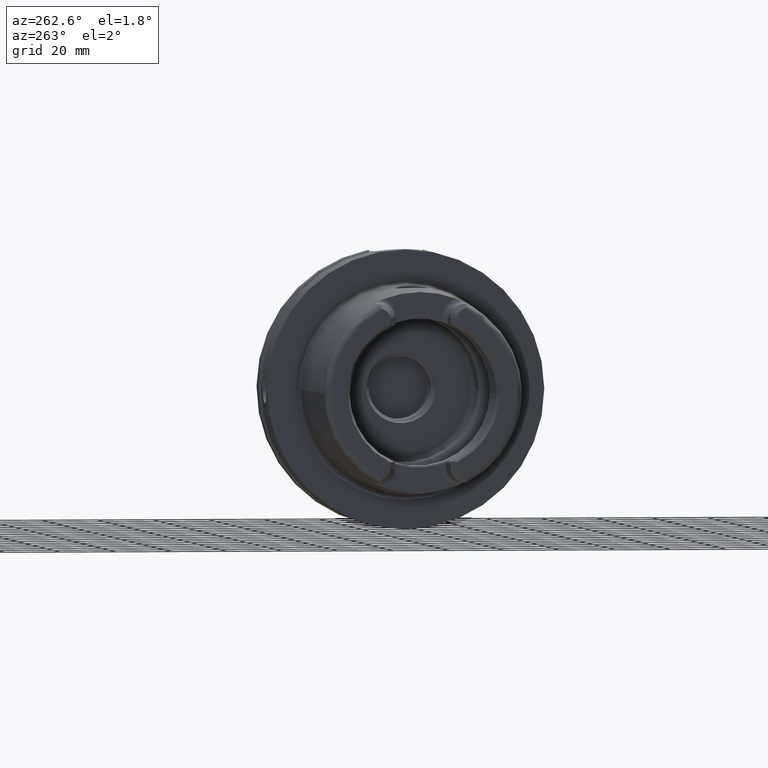
[diagram: clean part render]
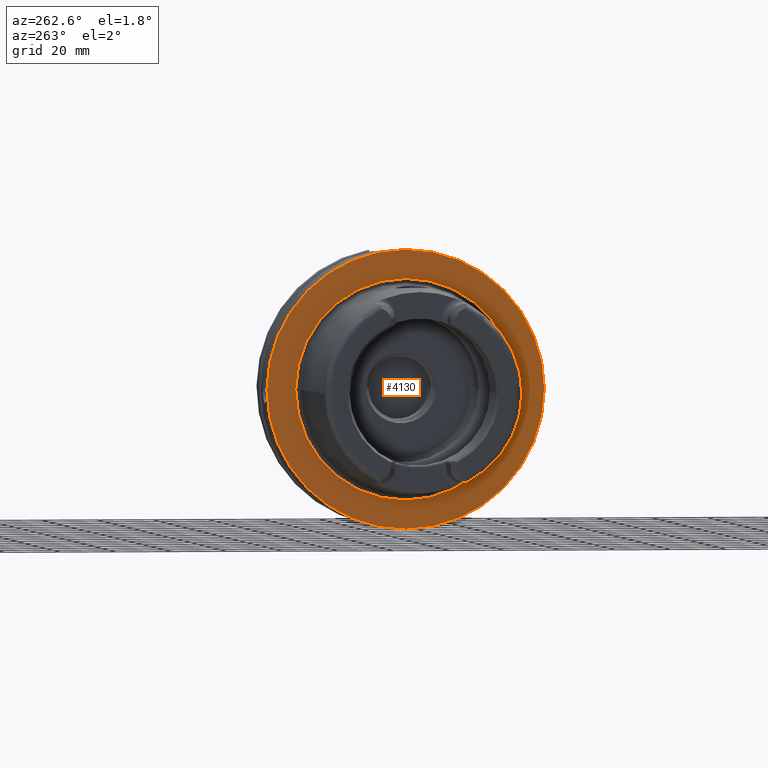
[diagram: same view with one face highlighted and labeled with its STEP entity id]
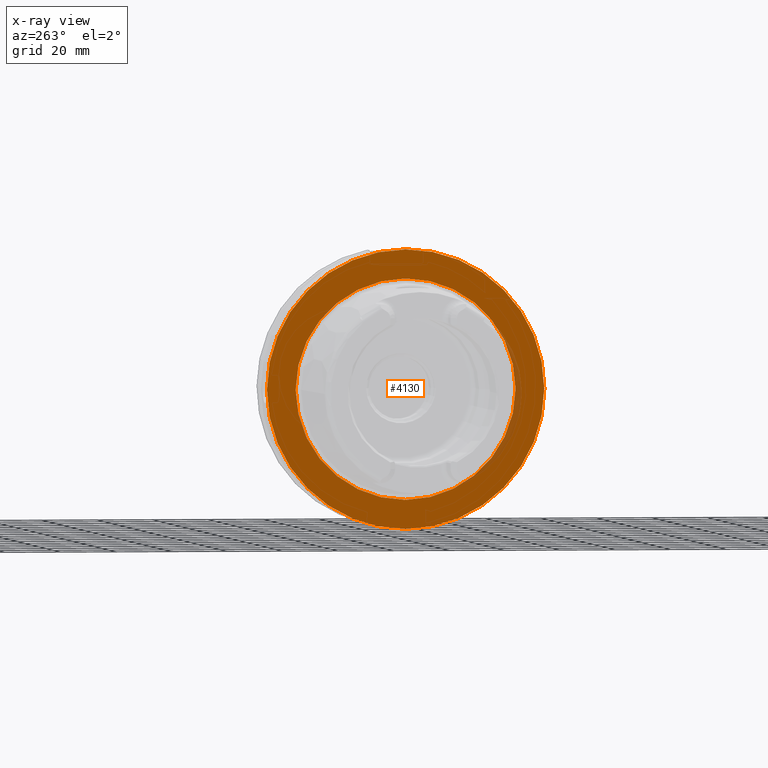
[diagram: x-ray of the same camera — body ghosted, the highlighted face saturated]
A machine part, auxiliary view. The second image highlights one B-rep face of the part: STEP entity #4130.
The next image is the same camera in x-ray: the body ghosted, the highlighted face saturated — about 4% of this face is hidden behind the body in this view.
In plain terms, the highlighted planar face has unit normal (1, 0, 0).
Its self-contained STEP definition (entity closure, byte-faithful):
#905=CARTESIAN_POINT('',(2.842170943040E-14,0.E0,0.E0));
#906=DIRECTION('',(1.E0,0.E0,0.E0));
#907=DIRECTION('',(0.E0,1.E0,0.E0));
#908=AXIS2_PLACEMENT_3D('',#905,#906,#907);
#910=CARTESIAN_POINT('',(2.842170943040E-14,0.E0,0.E0));
#911=DIRECTION('',(-1.E0,0.E0,0.E0));
#912=DIRECTION('',(0.E0,1.E0,0.E0));
#913=AXIS2_PLACEMENT_3D('',#910,#911,#912);
#915=CARTESIAN_POINT('',(0.E0,0.E0,0.E0));
#916=DIRECTION('',(-1.E0,0.E0,0.E0));
#917=DIRECTION('',(0.E0,-1.E0,0.E0));
#918=AXIS2_PLACEMENT_3D('',#915,#916,#917);
#920=CARTESIAN_POINT('',(0.E0,0.E0,0.E0));
#921=DIRECTION('',(-1.E0,0.E0,0.E0));
#922=DIRECTION('',(0.E0,1.E0,0.E0));
#923=AXIS2_PLACEMENT_3D('',#920,#921,#922);
#2693=CARTESIAN_POINT('',(2.842170943040E-14,5.E1,0.E0));
#2694=CARTESIAN_POINT('',(2.842170943040E-14,-5.E1,0.E0));
#2695=VERTEX_POINT('',#2693);
#2696=VERTEX_POINT('',#2694);
#2721=CARTESIAN_POINT('',(0.E0,-3.963225E1,0.E0));
#2722=VERTEX_POINT('',#2721);
#2723=CARTESIAN_POINT('',(0.E0,3.963225E1,0.E0));
#2724=VERTEX_POINT('',#2723);
#4115=CARTESIAN_POINT('',(0.E0,0.E0,0.E0));
#4116=DIRECTION('',(1.E0,0.E0,0.E0));
#4117=DIRECTION('',(0.E0,-1.E0,0.E0));
#4118=AXIS2_PLACEMENT_3D('',#4115,#4116,#4117);
#4119=PLANE('',#4118);
#4121=ORIENTED_EDGE('',*,*,#4120,.T.);
#4123=ORIENTED_EDGE('',*,*,#4122,.F.);
#4124=EDGE_LOOP('',(#4121,#4123));
#4125=FACE_OUTER_BOUND('',#4124,.F.);
#4126=ORIENTED_EDGE('',*,*,#4110,.T.);
#4127=ORIENTED_EDGE('',*,*,#4094,.T.);
#4128=EDGE_LOOP('',(#4126,#4127));
#4129=FACE_BOUND('',#4128,.F.);
#4130=ADVANCED_FACE('',(#4125,#4129),#4119,.F.);
#909=CIRCLE('',#908,5.E1);
#914=CIRCLE('',#913,5.E1);
#919=CIRCLE('',#918,3.963225E1);
#924=CIRCLE('',#923,3.963225E1);
#4094=EDGE_CURVE('',#2724,#2722,#924,.T.);
#4110=EDGE_CURVE('',#2722,#2724,#919,.T.);
#4120=EDGE_CURVE('',#2695,#2696,#909,.T.);
#4122=EDGE_CURVE('',#2695,#2696,#914,.T.);